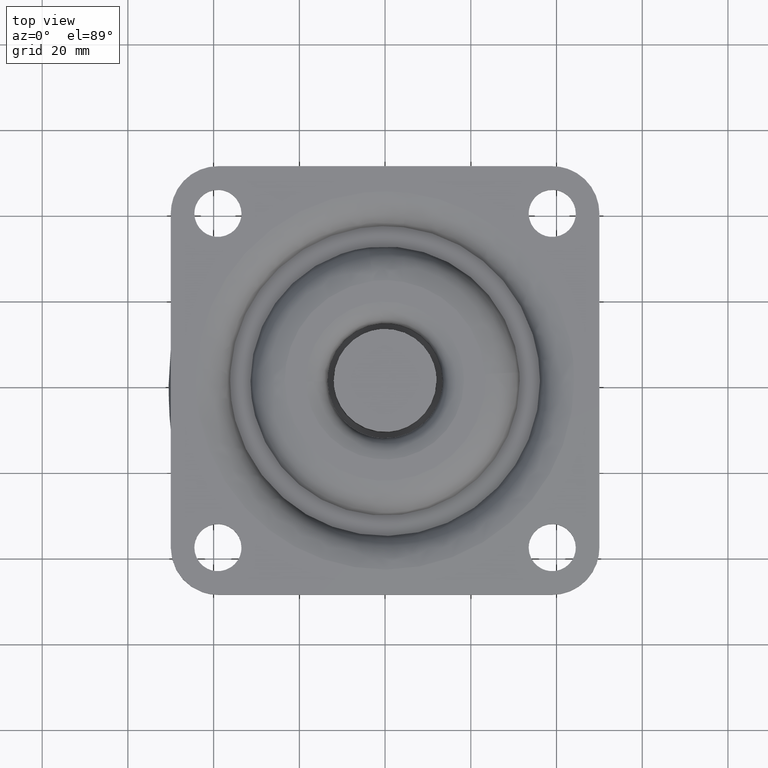
[diagram: clean part render]
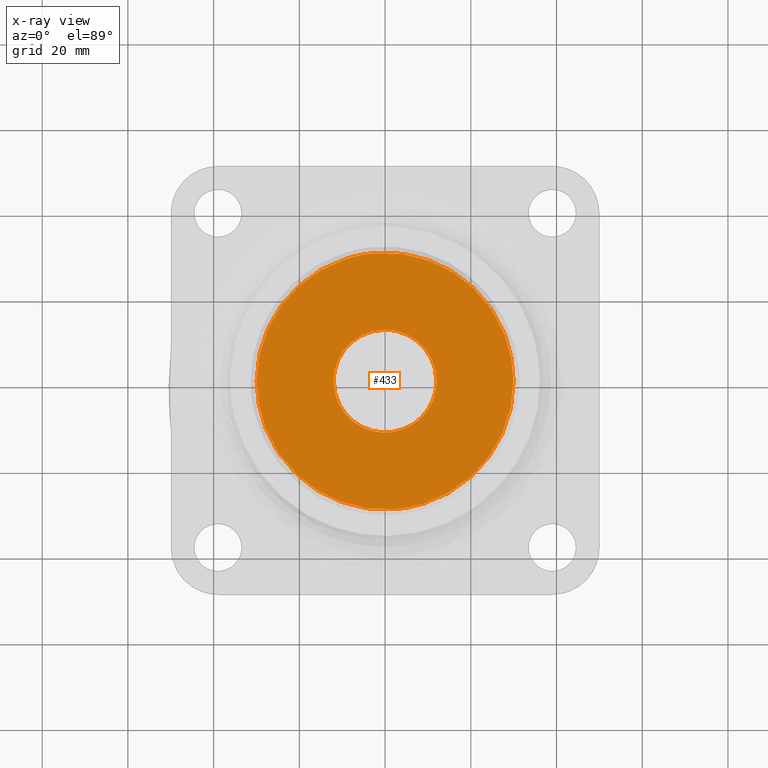
[diagram: x-ray — body ghosted, one internal face saturated and labeled with its STEP entity id]
A machine part, top view, then the same camera in x-ray: the body is ghosted and one INTERNAL B-rep face — a face not visible from any outside direction — is saturated and labeled: STEP entity #433.
In plain terms, the highlighted face is a freeform B-spline surface patch.
Its self-contained STEP definition (entity closure, byte-faithful):
#66=CARTESIAN_POINT('',(1.489515329898046,-11.907197154727850,-10.649998999998420));
#67=VERTEX_POINT('',#66);
#68=CARTESIAN_POINT('',(12.0,1.989520E-013,-10.649998999999960));
#69=VERTEX_POINT('',#68);
#70=CARTESIAN_POINT('',(1.489515329898046,-11.907197154727848,-10.649998999998425));
#71=CARTESIAN_POINT('',(12.0,-10.592401755178980,-10.649998999999958));
#72=CARTESIAN_POINT('',(12.0,1.989520E-013,-10.649998999999960));
#80=(BOUNDED_CURVE()B_SPLINE_CURVE(2,(#70,#71,#72),.UNSPECIFIED.,.F.,.U.)B_SPLINE_CURVE_WITH_KNOTS((3,3),(0.771473635859017,1.0),.UNSPECIFIED.)CURVE()GEOMETRIC_REPRESENTATION_ITEM()RATIONAL_B_SPLINE_CURVE((0.954005999091981,0.732264710492050,1.0))REPRESENTATION_ITEM(''));
#81=EDGE_CURVE('',#67,#69,#80,.T.);
#83=CARTESIAN_POINT('',(-0.104718426055379,11.999543076769600,-10.649998999999960));
#84=VERTEX_POINT('',#83);
#85=CARTESIAN_POINT('',(12.0,1.989520E-013,-10.649998999999960));
#86=CARTESIAN_POINT('',(12.0,12.000000000000199,-10.649998999999958));
#87=CARTESIAN_POINT('',(-2.436378E-029,12.000000000000201,-10.649998999999960));
#88=CARTESIAN_POINT('',(-0.052360209923319,12.000000000000197,-10.649998999999964));
#89=CARTESIAN_POINT('',(-0.104718426055379,11.999543076769598,-10.649998999999960));
#97=(BOUNDED_CURVE()B_SPLINE_CURVE(2,(#85,#86,#87,#88,#89),.UNSPECIFIED.,.F.,.U.)B_SPLINE_CURVE_WITH_KNOTS((3,2,3),(0.0,0.250000000000000,0.251539894337186),.UNSPECIFIED.)CURVE()GEOMETRIC_REPRESENTATION_ITEM()RATIONAL_B_SPLINE_CURVE((1.0,0.707106781186548,1.0,0.998195901563796,0.996414028095317))REPRESENTATION_ITEM(''));
#98=EDGE_CURVE('',#69,#84,#97,.T.);
#169=CARTESIAN_POINT('',(-12.0,1.989520E-013,-10.649998999999960));
#170=VERTEX_POINT('',#169);
#171=CARTESIAN_POINT('',(-12.0,1.989520E-013,-10.649998999999960));
#172=CARTESIAN_POINT('',(-12.0,-11.999999999999799,-10.649998999999958));
#173=CARTESIAN_POINT('',(-2.436378E-029,-11.999999999999799,-10.649998999999960));
#174=CARTESIAN_POINT('',(0.747648661744325,-11.999999999999803,-10.649998999999958));
#175=CARTESIAN_POINT('',(1.489515329898046,-11.907197154727848,-10.649998999998425));
#183=(BOUNDED_CURVE()B_SPLINE_CURVE(2,(#171,#172,#173,#174,#175),.UNSPECIFIED.,.F.,.U.)B_SPLINE_CURVE_WITH_KNOTS((3,2,3),(0.500000000000000,0.750000000000000,0.771473635859017),.UNSPECIFIED.)CURVE()GEOMETRIC_REPRESENTATION_ITEM()RATIONAL_B_SPLINE_CURVE((1.0,0.707106781186548,1.0,0.974842070694498,0.954005999091981))REPRESENTATION_ITEM(''));
#184=EDGE_CURVE('',#170,#67,#183,.T.);
#218=CARTESIAN_POINT('',(-0.104718426055379,11.999543076769596,-10.649998999999958));
#219=CARTESIAN_POINT('',(-12.0,11.895734526991445,-10.649998999999958));
#220=CARTESIAN_POINT('',(-12.0,1.989520E-013,-10.649998999999960));
#228=(BOUNDED_CURVE()B_SPLINE_CURVE(2,(#218,#219,#220),.UNSPECIFIED.,.F.,.U.)B_SPLINE_CURVE_WITH_KNOTS((3,3),(0.251539894337186,0.500000000000000),.UNSPECIFIED.)CURVE()GEOMETRIC_REPRESENTATION_ITEM()RATIONAL_B_SPLINE_CURVE((0.996414028095317,0.708910879622751,1.0))REPRESENTATION_ITEM(''));
#229=EDGE_CURVE('',#84,#170,#228,.T.);
#252=CARTESIAN_POINT('',(-29.969723200000001,9.685118E-016,-10.649997999999981));
#253=VERTEX_POINT('',#252);
#254=CARTESIAN_POINT('',(-2.351397381487089,29.877336545263891,-10.649997999999760));
#255=VERTEX_POINT('',#254);
#256=CARTESIAN_POINT('',(-29.969723200000001,9.685118E-016,-10.649997999999981));
#257=CARTESIAN_POINT('',(-29.969723200000008,27.703727163706063,-10.649997999999982));
#258=CARTESIAN_POINT('',(-2.351397381487089,29.877336545263883,-10.649997999999758));
#266=(BOUNDED_CURVE()B_SPLINE_CURVE(2,(#256,#257,#258),.UNSPECIFIED.,.F.,.U.)B_SPLINE_CURVE_WITH_KNOTS((3,3),(0.0,0.236331300632753),.UNSPECIFIED.)CURVE()GEOMETRIC_REPRESENTATION_ITEM()RATIONAL_B_SPLINE_CURVE((1.0,0.723120658605213,0.969723356171786))REPRESENTATION_ITEM(''));
#267=EDGE_CURVE('',#253,#255,#266,.T.);
#308=CARTESIAN_POINT('',(2.351397381487089,-29.877336545263891,-10.649997999999760));
#309=VERTEX_POINT('',#308);
#315=CARTESIAN_POINT('',(2.351397381487089,-29.877336545263891,-10.649997999999760));
#316=CARTESIAN_POINT('',(1.177513631519497,-29.969723200000001,-10.649997999999977));
#317=CARTESIAN_POINT('',(0.0,-29.969723200000001,-10.649997999999981));
#318=CARTESIAN_POINT('',(-29.969723200000001,-29.969723200000001,-10.649997999999981));
#319=CARTESIAN_POINT('',(-29.969723200000001,9.685118E-016,-10.649997999999981));
#327=(BOUNDED_CURVE()B_SPLINE_CURVE(2,(#315,#316,#317,#318,#319),.UNSPECIFIED.,.F.,.U.)B_SPLINE_CURVE_WITH_KNOTS((3,2,3),(0.736331300632753,0.750000000000000,1.0),.UNSPECIFIED.)CURVE()GEOMETRIC_REPRESENTATION_ITEM()RATIONAL_B_SPLINE_CURVE((0.969723356171786,0.983986122581334,1.0,0.707106781186548,1.0))REPRESENTATION_ITEM(''));
#328=EDGE_CURVE('',#309,#253,#327,.T.);
#351=CARTESIAN_POINT('',(29.969723200000001,9.685118E-016,-10.649997999999981));
#352=VERTEX_POINT('',#351);
#353=CARTESIAN_POINT('',(-2.351397381487089,29.877336545263891,-10.649997999999760));
#354=CARTESIAN_POINT('',(-1.177513631519497,29.969723200000001,-10.649997999999977));
#355=CARTESIAN_POINT('',(0.0,29.969723200000001,-10.649997999999981));
#356=CARTESIAN_POINT('',(29.969723200000001,29.969723200000001,-10.649997999999981));
#357=CARTESIAN_POINT('',(29.969723200000001,9.685118E-016,-10.649997999999981));
#365=(BOUNDED_CURVE()B_SPLINE_CURVE(2,(#353,#354,#355,#356,#357),.UNSPECIFIED.,.F.,.U.)B_SPLINE_CURVE_WITH_KNOTS((3,2,3),(0.236331300632753,0.250000000000000,0.500000000000000),.UNSPECIFIED.)CURVE()GEOMETRIC_REPRESENTATION_ITEM()RATIONAL_B_SPLINE_CURVE((0.969723356171786,0.983986122581334,1.0,0.707106781186548,1.0))REPRESENTATION_ITEM(''));
#366=EDGE_CURVE('',#255,#352,#365,.T.);
#368=CARTESIAN_POINT('',(29.969723200000001,9.685118E-016,-10.649997999999981));
#369=CARTESIAN_POINT('',(29.969723200000011,-27.703727163706080,-10.649997999999981));
#370=CARTESIAN_POINT('',(2.351397381487089,-29.877336545263887,-10.649997999999755));
#378=(BOUNDED_CURVE()B_SPLINE_CURVE(2,(#368,#369,#370),.UNSPECIFIED.,.F.,.U.)B_SPLINE_CURVE_WITH_KNOTS((3,3),(0.500000000000000,0.736331300632753),.UNSPECIFIED.)CURVE()GEOMETRIC_REPRESENTATION_ITEM()RATIONAL_B_SPLINE_CURVE((1.0,0.723120658605213,0.969723356171786))REPRESENTATION_ITEM(''));
#379=EDGE_CURVE('',#352,#309,#378,.T.);
#416=CARTESIAN_POINT('',(-32.963697868837087,-32.954551496733473,-10.649998999999980));
#417=CARTESIAN_POINT('',(32.963700012438728,-32.954551496733473,-10.649998999999980));
#418=CARTESIAN_POINT('',(-32.963697868837087,32.954552032633870,-10.649998999999980));
#419=CARTESIAN_POINT('',(32.963700012438728,32.954552032633870,-10.649998999999980));
#420=B_SPLINE_SURFACE_WITH_KNOTS('',1,1,((#416,#418),(#417,#419)),.UNSPECIFIED.,.F.,.F.,.U.,(2,2),(2,2),(0.0,65.927397881275823),(0.0,65.909103529367343),.UNSPECIFIED.);
#421=ORIENTED_EDGE('',*,*,#328,.F.);
#422=ORIENTED_EDGE('',*,*,#379,.F.);
#423=ORIENTED_EDGE('',*,*,#366,.F.);
#424=ORIENTED_EDGE('',*,*,#267,.F.);
#425=EDGE_LOOP('',(#421,#422,#423,#424));
#426=FACE_OUTER_BOUND('',#425,.T.);
#427=ORIENTED_EDGE('',*,*,#98,.F.);
#428=ORIENTED_EDGE('',*,*,#81,.F.);
#429=ORIENTED_EDGE('',*,*,#184,.F.);
#430=ORIENTED_EDGE('',*,*,#229,.F.);
#431=EDGE_LOOP('',(#427,#428,#429,#430));
#432=FACE_BOUND('',#431,.T.);
#433=ADVANCED_FACE('',(#426,#432),#420,.T.);